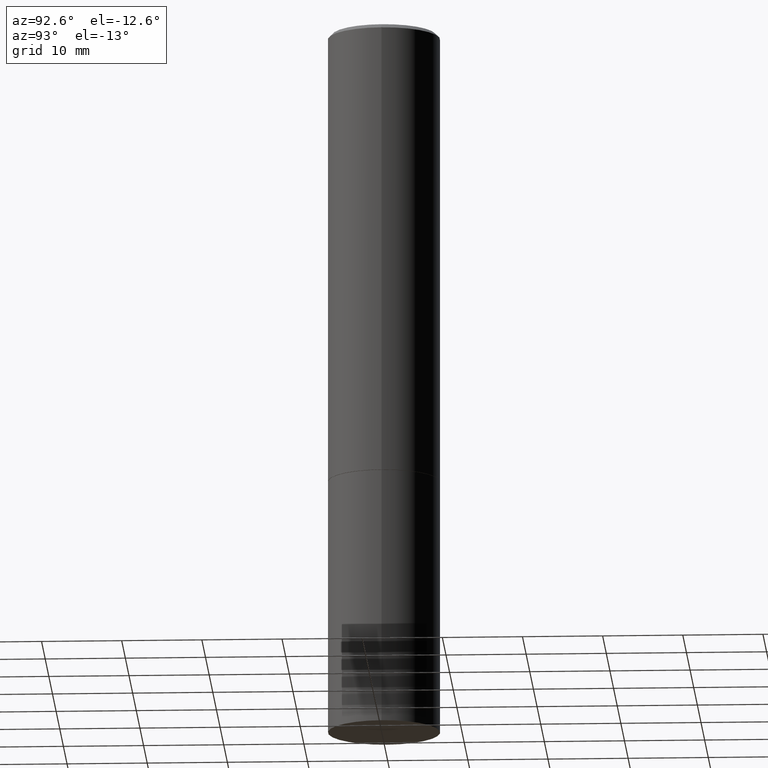
[diagram: clean part render]
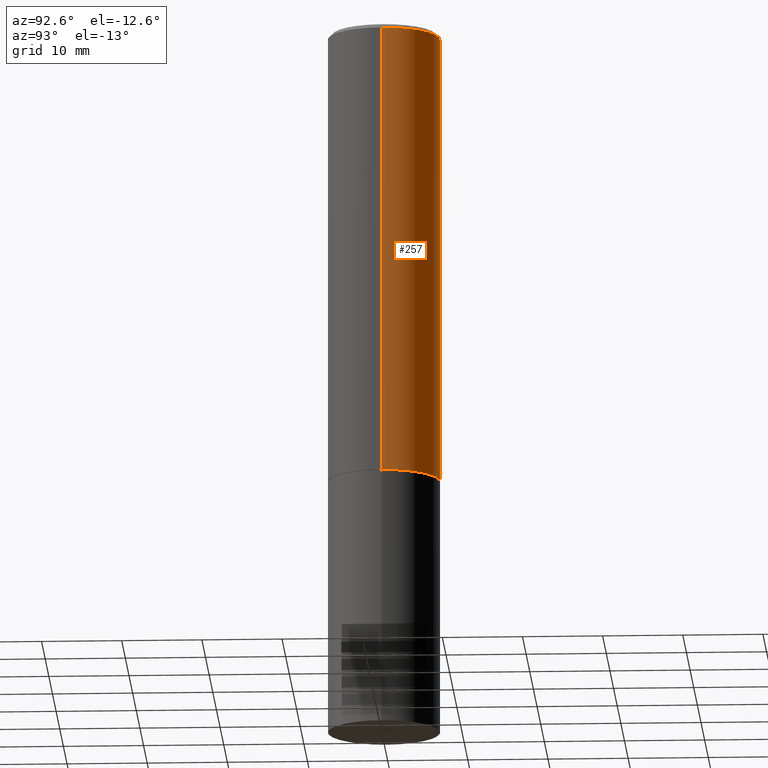
[diagram: same view with one face highlighted and labeled with its STEP entity id]
A machine part, auxiliary view. The second image highlights one B-rep face of the part: STEP entity #257.
In plain terms, the highlighted cylindrical surface (partial cylindrical patch) has radius 7.0002 mm, axis along (-0, 0, 1).
Its self-contained STEP definition (entity closure, byte-faithful):
#1 = AXIS2_PLACEMENT_3D ( 'NONE', #223, #328, #361 ) ;
#4 = CARTESIAN_POINT ( 'NONE',  ( 0.2755999999999997896, -1.960582874962695828E-15, -0.02000000000000005940 ) ) ;
#5 = ORIENTED_EDGE ( 'NONE', *, *, #233, .T. ) ;
#40 = VERTEX_POINT ( 'NONE', #121 ) ;
#42 = CIRCLE ( 'NONE', #1, 0.2755999999999997896 ) ;
#47 = CARTESIAN_POINT ( 'NONE',  ( 0.2755999999999999006, -1.924504513970334560E-15, 1.343874319409359427E-29 ) ) ;
#48 = AXIS2_PLACEMENT_3D ( 'NONE', #73, #358, #107 ) ;
#66 = CARTESIAN_POINT ( 'NONE',  ( -0.2755999999999999006, 1.958255779754835406E-15, -1.355658510874251446E-29 ) ) ;
#71 = VERTEX_POINT ( 'NONE', #266 ) ;
#73 = CARTESIAN_POINT ( 'NONE',  ( 5.485431079153878028E-29, -7.831741791159057755E-15, -2.243099999999999206 ) ) ;
#104 = DIRECTION ( 'NONE',  ( -2.445468806185136597E-29, 3.491481338843145583E-15, 1.000000000000000000 ) ) ;
#107 = DIRECTION ( 'NONE',  ( 1.000000000000000000, -6.982962677686264344E-15, 0.000000000000000000 ) ) ;
#118 = CARTESIAN_POINT ( 'NONE',  ( 0.2756000000000000671, -9.756246305129392709E-15, -2.243099999999999206 ) ) ;
#119 = EDGE_LOOP ( 'NONE', ( #5, #357, #268, #272 ) ) ;
#121 = CARTESIAN_POINT ( 'NONE',  ( -0.2756000000000000671, -1.992529929213121965E-15, -2.243099999999999206 ) ) ;
#123 = VERTEX_POINT ( 'NONE', #4 ) ;
#155 = VERTEX_POINT ( 'NONE', #118 ) ;
#161 = DIRECTION ( 'NONE',  ( -2.445468806185136877E-29, 3.491481338843145188E-15, 1.000000000000000000 ) ) ;
#169 = VECTOR ( 'NONE', #161, 39.37007874015748143 ) ;
#191 = CYLINDRICAL_SURFACE ( 'NONE', #285, 0.2755999999999999006 ) ;
#194 = DIRECTION ( 'NONE',  ( 1.000000000000000000, -6.982962677686267499E-15, 4.876176775795935793E-29 ) ) ;
#198 = EDGE_CURVE ( 'NONE', #40, #71, #220, .T. ) ;
#220 = LINE ( 'NONE', #66, #287 ) ;
#223 = CARTESIAN_POINT ( 'NONE',  ( 4.890937612370288047E-31, -6.982962677686311331E-17, -0.02000000000000005940 ) ) ;
#232 = EDGE_CURVE ( 'NONE', #155, #123, #250, .T. ) ;
#233 = EDGE_CURVE ( 'NONE', #155, #40, #301, .T. ) ;
#250 = LINE ( 'NONE', #47, #169 ) ;
#252 = DIRECTION ( 'NONE',  ( -2.445468806185136877E-29, 3.491481338843145188E-15, 1.000000000000000000 ) ) ;
#254 = EDGE_CURVE ( 'NONE', #123, #71, #42, .T. ) ;
#257 = ADVANCED_FACE ( 'NONE', ( #331 ), #191, .T. ) ;
#266 = CARTESIAN_POINT ( 'NONE',  ( -0.2755999999999997896, 1.854674887193470472E-15, -0.02000000000000005940 ) ) ;
#268 = ORIENTED_EDGE ( 'NONE', *, *, #254, .F. ) ;
#272 = ORIENTED_EDGE ( 'NONE', *, *, #232, .F. ) ;
#285 = AXIS2_PLACEMENT_3D ( 'NONE', #303, #104, #194 ) ;
#287 = VECTOR ( 'NONE', #252, 39.37007874015748143 ) ;
#301 = CIRCLE ( 'NONE', #48, 0.2756000000000000671 ) ;
#303 = CARTESIAN_POINT ( 'NONE',  ( 0.000000000000000000, 0.000000000000000000, 0.000000000000000000 ) ) ;
#328 = DIRECTION ( 'NONE',  ( -2.445468806185136597E-29, 3.491481338843145583E-15, 1.000000000000000000 ) ) ;
#331 = FACE_OUTER_BOUND ( 'NONE', #119, .T. ) ;
#357 = ORIENTED_EDGE ( 'NONE', *, *, #198, .T. ) ;
#358 = DIRECTION ( 'NONE',  ( -2.445468806185136597E-29, 3.491481338843145583E-15, 1.000000000000000000 ) ) ;
#361 = DIRECTION ( 'NONE',  ( 1.000000000000000000, -6.982962677686267499E-15, 0.000000000000000000 ) ) ;